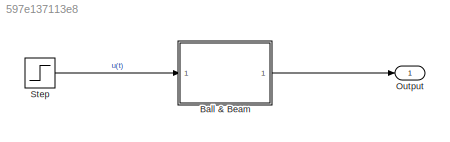
MODEL slx_597e137113e8
KIND model
CONFIG AbsTol = auto
CONFIG EnableMultiTasking = off
CONFIG FixedStep = 0.01
CONFIG MaxStep = 0.01
CONFIG MinStep = auto
CONFIG RelTol = 1e-10
CONFIG SampleTimeConstraint = Unconstrained
CONFIG Solver = VariableStepAuto
CONFIG SolverName = VariableStepAuto
CONFIG StartTime = 0.0
CONFIG StopTime = 10
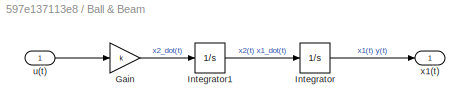
BLOCK [SubSystem] Ball & Beam
  Ports = [1, 1]
  RequestExecContextInheritance = off
  VariantControl = Choice
BLOCK [Gain] Ball & Beam/Gain
  Gain = k
BLOCK [Integrator] Ball & Beam/Integrator
  Ports = [1, 1]
BLOCK [Integrator] Ball & Beam/Integrator1
  Ports = [1, 1]
BLOCK [Inport] Ball & Beam/u(t)
BLOCK [Outport] Ball & Beam/x1(t)
BLOCK [Outport] Output
  SignalName = y(t)
BLOCK [Step] Step
  SampleTime = 0
  Time = 0
LINE Ball & Beam/Gain:1 -> Ball & Beam/Integrator1:1
LINE Ball & Beam/Integrator1:1 -> Ball & Beam/Integrator:1
LINE Ball & Beam/Integrator:1 -> Ball & Beam/x1(t):1
LINE Ball & Beam/u(t):1 -> Ball & Beam/Gain:1
LINE Ball & Beam:1 -> Output:1
LINE Step:1 -> Ball & Beam:1
